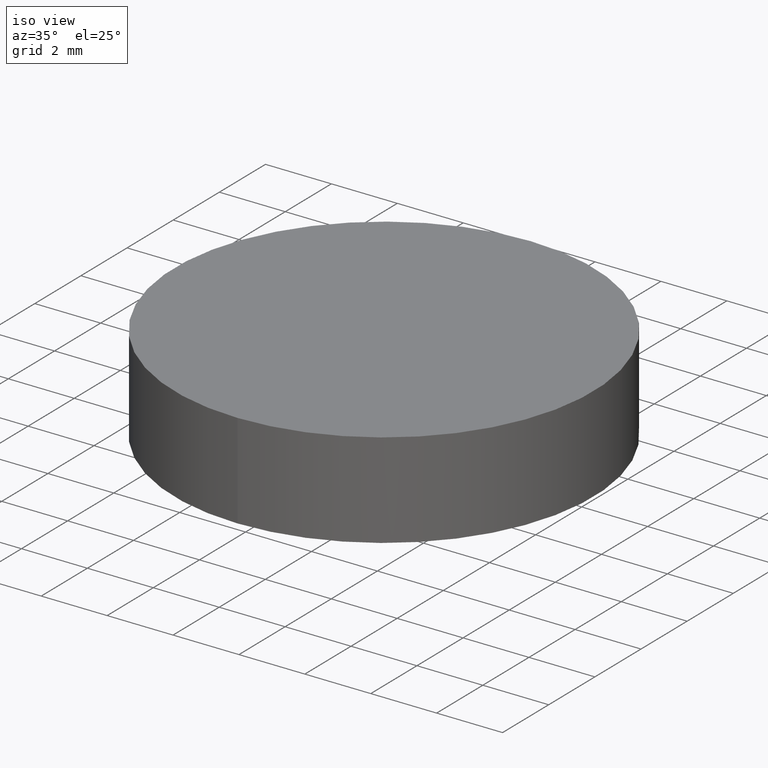
[diagram: clean part render]
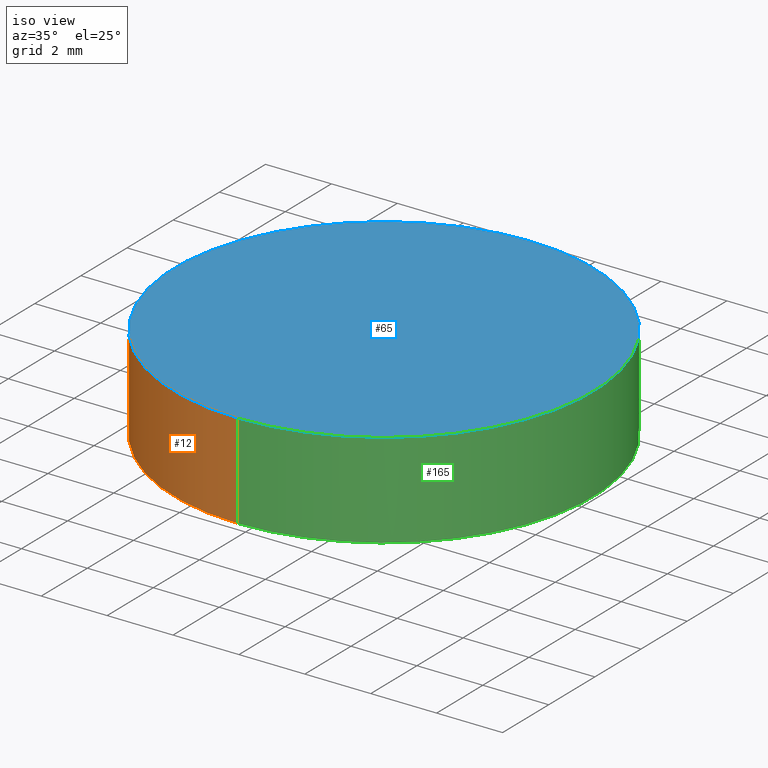
[diagram: same view with three faces highlighted in distinct colors, each labeled with its STEP entity id]
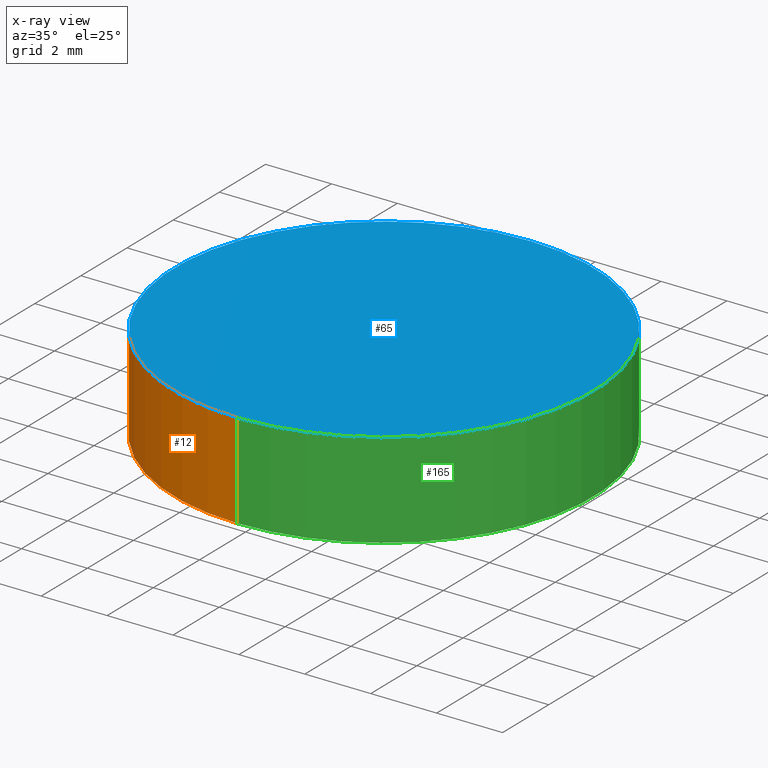
[diagram: x-ray of the same camera — body ghosted, the three highlighted faces saturated]
A machine part, iso view with three faces highlighted in distinct colors.
The next image is the same camera in x-ray (body ghosted, the three faces saturated) — at least one of them is partly hidden behind the body in this view.
Their STEP definitions:

[orange] entity #12 — the highlighted cylindrical surface (partial cylindrical patch) has radius 6.35 mm, axis along (-0, -0, 1).
#1 = VERTEX_POINT ( 'NONE', #187 ) ;
#2 = DIRECTION ( 'NONE',  ( -2.213349001226770100E-032, -1.150855266018229900E-016, 1.000000000000000000 ) ) ;
#12 = ADVANCED_FACE ( 'NONE', ( #52 ), #63, .T. ) ;
#18 = VERTEX_POINT ( 'NONE', #107 ) ;
#20 = LINE ( 'NONE', #76, #208 ) ;
#27 = ORIENTED_EDGE ( 'NONE', *, *, #43, .F. ) ;
#34 = LINE ( 'NONE', #159, #167 ) ;
#43 = EDGE_CURVE ( 'NONE', #125, #18, #135, .T. ) ;
#48 = AXIS2_PLACEMENT_3D ( 'NONE', #90, #2, #72 ) ;
#52 = FACE_OUTER_BOUND ( 'NONE', #121, .T. ) ;
#63 = CYLINDRICAL_SURFACE ( 'NONE', #48, 6.349999999999999600 ) ;
#72 = DIRECTION ( 'NONE',  ( 0.0000000000000000000, -1.000000000000000000, -1.152498372327111000E-016 ) ) ;
#76 = CARTESIAN_POINT ( 'NONE',  ( 1.027450897999229200E-015, 6.350000000000000500, 0.1059183789469497300 ) ) ;
#86 = CIRCLE ( 'NONE', #188, 6.349999999999999600 ) ;
#90 = CARTESIAN_POINT ( 'NONE',  ( 2.498001805406600200E-016, 1.221245327087670000E-015, 0.1059183789469490000 ) ) ;
#91 = CARTESIAN_POINT ( 'NONE',  ( 1.027450897999229200E-015, 6.350000000000000500, 3.000000000000000900 ) ) ;
#92 = DIRECTION ( 'NONE',  ( 2.213349001226770100E-032, 1.150855266018229900E-016, -1.000000000000000000 ) ) ;
#97 = DIRECTION ( 'NONE',  ( -2.213349001226770100E-032, -1.150855266018229900E-016, 1.000000000000000000 ) ) ;
#105 = ORIENTED_EDGE ( 'NONE', *, *, #151, .F. ) ;
#107 = CARTESIAN_POINT ( 'NONE',  ( 1.027450897999229200E-015, 6.350000000000000500, 0.1059183789469497300 ) ) ;
#112 = CARTESIAN_POINT ( 'NONE',  ( 2.498001805406600200E-016, -6.349999999999998800, 0.1059183789469482600 ) ) ;
#116 = VERTEX_POINT ( 'NONE', #91 ) ;
#121 = EDGE_LOOP ( 'NONE', ( #105, #27, #195, #154 ) ) ;
#125 = VERTEX_POINT ( 'NONE', #112 ) ;
#126 = CARTESIAN_POINT ( 'NONE',  ( 2.498001805406599800E-016, 8.881784197001221800E-016, 3.000000000000000000 ) ) ;
#135 = CIRCLE ( 'NONE', #176, 6.349999999999999600 ) ;
#151 = EDGE_CURVE ( 'NONE', #18, #116, #20, .T. ) ;
#154 = ORIENTED_EDGE ( 'NONE', *, *, #179, .T. ) ;
#157 = DIRECTION ( 'NONE',  ( 2.213349001226770100E-032, 1.150855266018229900E-016, -1.000000000000000000 ) ) ;
#159 = CARTESIAN_POINT ( 'NONE',  ( 2.498001805406600200E-016, -6.349999999999998800, 0.1059183789469482600 ) ) ;
#167 = VECTOR ( 'NONE', #214, 1000.000000000000000 ) ;
#169 = CARTESIAN_POINT ( 'NONE',  ( 2.498001805406600200E-016, 1.221245327087670000E-015, 0.1059183789469490000 ) ) ;
#176 = AXIS2_PLACEMENT_3D ( 'NONE', #169, #92, #205 ) ;
#179 = EDGE_CURVE ( 'NONE', #1, #116, #86, .T. ) ;
#187 = CARTESIAN_POINT ( 'NONE',  ( 2.498001805406599800E-016, -6.349999999999998800, 2.999999999999999100 ) ) ;
#188 = AXIS2_PLACEMENT_3D ( 'NONE', #126, #157, #194 ) ;
#194 = DIRECTION ( 'NONE',  ( 0.0000000000000000000, -1.000000000000000000, -1.365923996832131600E-016 ) ) ;
#195 = ORIENTED_EDGE ( 'NONE', *, *, #202, .T. ) ;
#202 = EDGE_CURVE ( 'NONE', #125, #1, #34, .T. ) ;
#205 = DIRECTION ( 'NONE',  ( 0.0000000000000000000, -1.000000000000000000, -1.152498372327111000E-016 ) ) ;
#208 = VECTOR ( 'NONE', #97, 1000.000000000000000 ) ;
#214 = DIRECTION ( 'NONE',  ( -2.213349001226770100E-032, -1.150855266018229900E-016, 1.000000000000000000 ) ) ;

[blue] entity #65 — the highlighted planar face has unit normal (0, 0, 1).
#1 = VERTEX_POINT ( 'NONE', #187 ) ;
#17 = DIRECTION ( 'NONE',  ( 2.213349001226770100E-032, 1.150855266018229900E-016, -1.000000000000000000 ) ) ;
#29 = FACE_OUTER_BOUND ( 'NONE', #149, .T. ) ;
#30 = EDGE_CURVE ( 'NONE', #116, #1, #71, .T. ) ;
#35 = DIRECTION ( 'NONE',  ( 0.0000000000000000000, -1.000000000000000000, -1.365923996832131600E-016 ) ) ;
#65 = ADVANCED_FACE ( 'NONE', ( #29 ), #73, .T. ) ;
#71 = CIRCLE ( 'NONE', #170, 6.349999999999999600 ) ;
#73 = PLANE ( 'NONE',  #127 ) ;
#80 = DIRECTION ( 'NONE',  ( 1.000000000000000000, 0.0000000000000000000, -0.0000000000000000000 ) ) ;
#86 = CIRCLE ( 'NONE', #188, 6.349999999999999600 ) ;
#91 = CARTESIAN_POINT ( 'NONE',  ( 1.027450897999229200E-015, 6.350000000000000500, 3.000000000000000900 ) ) ;
#116 = VERTEX_POINT ( 'NONE', #91 ) ;
#120 = ORIENTED_EDGE ( 'NONE', *, *, #179, .F. ) ;
#124 = CARTESIAN_POINT ( 'NONE',  ( 0.0000000000000000000, 13.15799999999999900, 3.000000000000000000 ) ) ;
#126 = CARTESIAN_POINT ( 'NONE',  ( 2.498001805406599800E-016, 8.881784197001221800E-016, 3.000000000000000000 ) ) ;
#127 = AXIS2_PLACEMENT_3D ( 'NONE', #124, #211, #80 ) ;
#139 = ORIENTED_EDGE ( 'NONE', *, *, #30, .F. ) ;
#149 = EDGE_LOOP ( 'NONE', ( #120, #139 ) ) ;
#157 = DIRECTION ( 'NONE',  ( 2.213349001226770100E-032, 1.150855266018229900E-016, -1.000000000000000000 ) ) ;
#170 = AXIS2_PLACEMENT_3D ( 'NONE', #204, #17, #35 ) ;
#179 = EDGE_CURVE ( 'NONE', #1, #116, #86, .T. ) ;
#187 = CARTESIAN_POINT ( 'NONE',  ( 2.498001805406599800E-016, -6.349999999999998800, 2.999999999999999100 ) ) ;
#188 = AXIS2_PLACEMENT_3D ( 'NONE', #126, #157, #194 ) ;
#194 = DIRECTION ( 'NONE',  ( 0.0000000000000000000, -1.000000000000000000, -1.365923996832131600E-016 ) ) ;
#204 = CARTESIAN_POINT ( 'NONE',  ( 2.498001805406599800E-016, 8.881784197001221800E-016, 3.000000000000000000 ) ) ;
#211 = DIRECTION ( 'NONE',  ( 0.0000000000000000000, 0.0000000000000000000, 1.000000000000000000 ) ) ;

[green] entity #165 — the highlighted cylindrical surface (partial cylindrical patch) has radius 6.35 mm, axis along (-0, -0, 1).
#1 = VERTEX_POINT ( 'NONE', #187 ) ;
#17 = DIRECTION ( 'NONE',  ( 2.213349001226770100E-032, 1.150855266018229900E-016, -1.000000000000000000 ) ) ;
#18 = VERTEX_POINT ( 'NONE', #107 ) ;
#20 = LINE ( 'NONE', #76, #208 ) ;
#30 = EDGE_CURVE ( 'NONE', #116, #1, #71, .T. ) ;
#34 = LINE ( 'NONE', #159, #167 ) ;
#35 = DIRECTION ( 'NONE',  ( 0.0000000000000000000, -1.000000000000000000, -1.365923996832131600E-016 ) ) ;
#36 = FACE_OUTER_BOUND ( 'NONE', #79, .T. ) ;
#40 = ORIENTED_EDGE ( 'NONE', *, *, #129, .F. ) ;
#42 = DIRECTION ( 'NONE',  ( 0.0000000000000000000, -1.000000000000000000, -1.152498372327111000E-016 ) ) ;
#59 = ORIENTED_EDGE ( 'NONE', *, *, #30, .T. ) ;
#62 = CARTESIAN_POINT ( 'NONE',  ( 2.498001805406600200E-016, 1.221245327087670000E-015, 0.1059183789469490000 ) ) ;
#71 = CIRCLE ( 'NONE', #170, 6.349999999999999600 ) ;
#75 = CARTESIAN_POINT ( 'NONE',  ( 2.498001805406600200E-016, 1.221245327087670000E-015, 0.1059183789469490000 ) ) ;
#76 = CARTESIAN_POINT ( 'NONE',  ( 1.027450897999229200E-015, 6.350000000000000500, 0.1059183789469497300 ) ) ;
#79 = EDGE_LOOP ( 'NONE', ( #40, #184, #59, #148 ) ) ;
#91 = CARTESIAN_POINT ( 'NONE',  ( 1.027450897999229200E-015, 6.350000000000000500, 3.000000000000000900 ) ) ;
#93 = DIRECTION ( 'NONE',  ( -2.213349001226770100E-032, -1.150855266018229900E-016, 1.000000000000000000 ) ) ;
#97 = DIRECTION ( 'NONE',  ( -2.213349001226770100E-032, -1.150855266018229900E-016, 1.000000000000000000 ) ) ;
#107 = CARTESIAN_POINT ( 'NONE',  ( 1.027450897999229200E-015, 6.350000000000000500, 0.1059183789469497300 ) ) ;
#111 = DIRECTION ( 'NONE',  ( 2.213349001226770100E-032, 1.150855266018229900E-016, -1.000000000000000000 ) ) ;
#112 = CARTESIAN_POINT ( 'NONE',  ( 2.498001805406600200E-016, -6.349999999999998800, 0.1059183789469482600 ) ) ;
#114 = CIRCLE ( 'NONE', #163, 6.349999999999999600 ) ;
#116 = VERTEX_POINT ( 'NONE', #91 ) ;
#123 = CYLINDRICAL_SURFACE ( 'NONE', #152, 6.349999999999999600 ) ;
#125 = VERTEX_POINT ( 'NONE', #112 ) ;
#129 = EDGE_CURVE ( 'NONE', #18, #125, #114, .T. ) ;
#142 = DIRECTION ( 'NONE',  ( 0.0000000000000000000, -1.000000000000000000, -1.152498372327111000E-016 ) ) ;
#148 = ORIENTED_EDGE ( 'NONE', *, *, #202, .F. ) ;
#151 = EDGE_CURVE ( 'NONE', #18, #116, #20, .T. ) ;
#152 = AXIS2_PLACEMENT_3D ( 'NONE', #75, #93, #142 ) ;
#159 = CARTESIAN_POINT ( 'NONE',  ( 2.498001805406600200E-016, -6.349999999999998800, 0.1059183789469482600 ) ) ;
#163 = AXIS2_PLACEMENT_3D ( 'NONE', #62, #111, #42 ) ;
#165 = ADVANCED_FACE ( 'NONE', ( #36 ), #123, .T. ) ;
#167 = VECTOR ( 'NONE', #214, 1000.000000000000000 ) ;
#170 = AXIS2_PLACEMENT_3D ( 'NONE', #204, #17, #35 ) ;
#184 = ORIENTED_EDGE ( 'NONE', *, *, #151, .T. ) ;
#187 = CARTESIAN_POINT ( 'NONE',  ( 2.498001805406599800E-016, -6.349999999999998800, 2.999999999999999100 ) ) ;
#202 = EDGE_CURVE ( 'NONE', #125, #1, #34, .T. ) ;
#204 = CARTESIAN_POINT ( 'NONE',  ( 2.498001805406599800E-016, 8.881784197001221800E-016, 3.000000000000000000 ) ) ;
#208 = VECTOR ( 'NONE', #97, 1000.000000000000000 ) ;
#214 = DIRECTION ( 'NONE',  ( -2.213349001226770100E-032, -1.150855266018229900E-016, 1.000000000000000000 ) ) ;